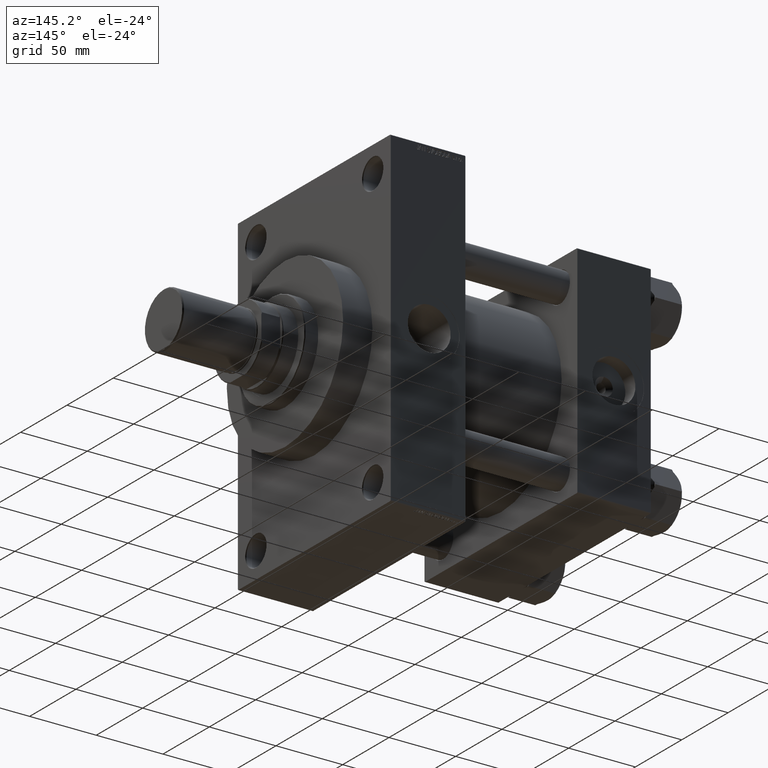
[diagram: clean part render]
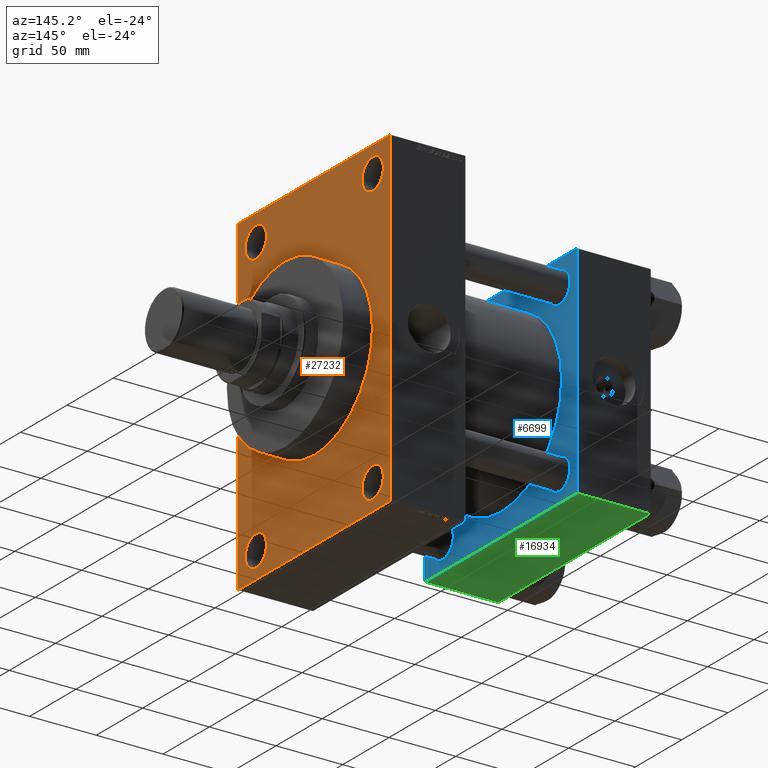
[diagram: same view with three faces highlighted in distinct colors, each labeled with its STEP entity id]
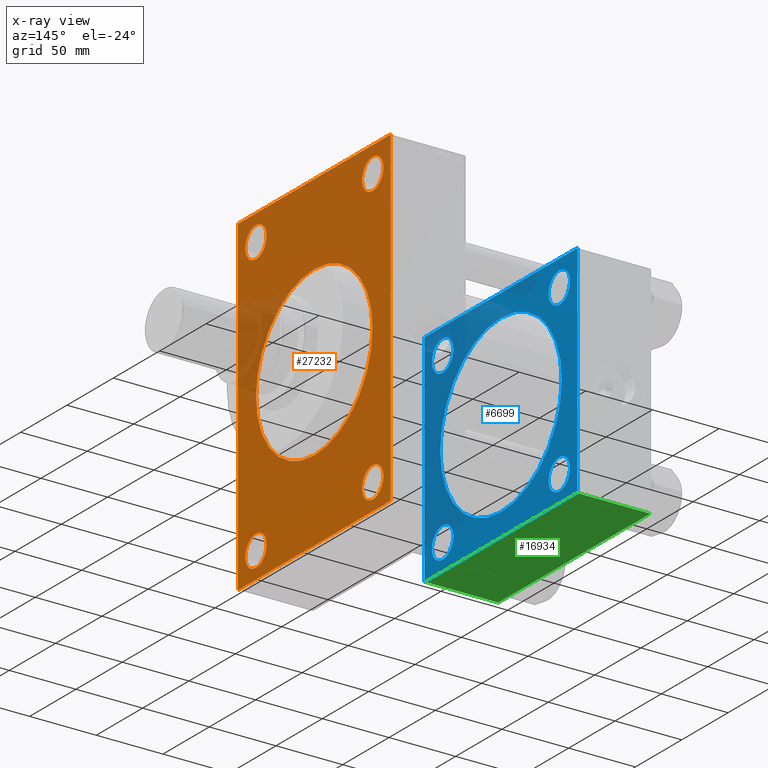
[diagram: x-ray of the same camera — body ghosted, the three highlighted faces saturated]
A machine part, auxiliary view with three faces highlighted in distinct colors.
The next image is the same camera in x-ray (body ghosted, the three faces saturated) — at least one of them is partly hidden behind the body in this view.
Their STEP definitions:

[orange] entity #27232 — the highlighted planar face has unit normal (-1, 0, 0).
#183 = CARTESIAN_POINT ( 'NONE',  ( 195.0000000000000000, 82.00000000000004263, 123.5000000000000142 ) ) ;
#771 = CARTESIAN_POINT ( 'NONE',  ( 195.0000000000000000, 82.49999999999998579, 123.0000000000000142 ) ) ;
#1801 = CARTESIAN_POINT ( 'NONE',  ( 195.0000000000000000, 63.00000000000000000, 92.49999999999992895 ) ) ;
#2216 = CIRCLE ( 'NONE', #36916, 11.50000000000006573 ) ;
#2468 = VERTEX_POINT ( 'NONE', #1801 ) ;
#3031 = CARTESIAN_POINT ( 'NONE',  ( 195.0000000000000000, 0.000000000000000000, 0.000000000000000000 ) ) ;
#3169 = DIRECTION ( 'NONE',  ( -1.000000000000000000, 0.000000000000000000, -0.000000000000000000 ) ) ;
#3202 = DIRECTION ( 'NONE',  ( -1.000000000000000000, 0.000000000000000000, -0.000000000000000000 ) ) ;
#3322 = DIRECTION ( 'NONE',  ( -1.000000000000000000, 0.000000000000000000, -0.000000000000000000 ) ) ;
#3455 = DIRECTION ( 'NONE',  ( 0.000000000000000000, -0.7071067811865081598, 0.7071067811865868746 ) ) ;
#3461 = CARTESIAN_POINT ( 'NONE',  ( 195.0000000000000000, 63.00000000000000000, 104.0000000000000000 ) ) ;
#3832 = CIRCLE ( 'NONE', #7078, 11.50000000000006573 ) ;
#3900 = LINE ( 'NONE', #39021, #39551 ) ;
#3941 = ORIENTED_EDGE ( 'NONE', *, *, #41685, .T. ) ;
#4130 = LINE ( 'NONE', #19527, #44230 ) ;
#4154 = DIRECTION ( 'NONE',  ( 0.000000000000000000, -1.000000000000000000, -8.410780489584517938E-17 ) ) ;
#4550 = ORIENTED_EDGE ( 'NONE', *, *, #31884, .T. ) ;
#4954 = CIRCLE ( 'NONE', #40443, 11.49999999999989875 ) ;
#5808 = EDGE_CURVE ( 'NONE', #39856, #36446, #3900, .T. ) ;
#5922 = CARTESIAN_POINT ( 'NONE',  ( 195.0000000000000000, 7.684658664649641591E-15, 62.75000000000000000 ) ) ;
#6226 = VECTOR ( 'NONE', #48804, 1000.000000000000000 ) ;
#6499 = CARTESIAN_POINT ( 'NONE',  ( 195.0000000000000000, 82.00000000000005684, -123.5000000000000000 ) ) ;
#6796 = DIRECTION ( 'NONE',  ( -1.000000000000000000, 0.000000000000000000, -0.000000000000000000 ) ) ;
#7078 = AXIS2_PLACEMENT_3D ( 'NONE', #16071, #43368, #38331 ) ;
#7091 = LINE ( 'NONE', #49045, #6226 ) ;
#7195 = ORIENTED_EDGE ( 'NONE', *, *, #14144, .T. ) ;
#7336 = VECTOR ( 'NONE', #4154, 1000.000000000000000 ) ;
#7674 = ORIENTED_EDGE ( 'NONE', *, *, #29486, .F. ) ;
#8782 = EDGE_CURVE ( 'NONE', #47368, #10394, #19550, .T. ) ;
#8845 = CARTESIAN_POINT ( 'NONE',  ( 195.0000000000000000, -82.00000000000009948, 123.4999999999999716 ) ) ;
#8954 = CARTESIAN_POINT ( 'NONE',  ( 195.0000000000000000, 82.00000000000004263, 123.5000000000000142 ) ) ;
#9005 = VERTEX_POINT ( 'NONE', #45758 ) ;
#9108 = EDGE_LOOP ( 'NONE', ( #7195, #28432, #10212, #40200, #7674, #22042, #49400, #24237 ) ) ;
#9723 = DIRECTION ( 'NONE',  ( -0.000000000000000000, 0.000000000000000000, 1.000000000000000000 ) ) ;
#10212 = ORIENTED_EDGE ( 'NONE', *, *, #8782, .F. ) ;
#10394 = VERTEX_POINT ( 'NONE', #34230 ) ;
#10517 = DIRECTION ( 'NONE',  ( 0.000000000000000000, 0.000000000000000000, 1.000000000000000000 ) ) ;
#10546 = EDGE_LOOP ( 'NONE', ( #4550, #49115 ) ) ;
#10993 = CARTESIAN_POINT ( 'NONE',  ( 195.0000000000000000, 63.00000000000000000, -104.0000000000000142 ) ) ;
#11004 = DIRECTION ( 'NONE',  ( -1.000000000000000000, 0.000000000000000000, -0.000000000000000000 ) ) ;
#11018 = DIRECTION ( 'NONE',  ( 0.000000000000000000, 0.000000000000000000, 1.000000000000000000 ) ) ;
#11026 = DIRECTION ( 'NONE',  ( -1.000000000000000000, 0.000000000000000000, -0.000000000000000000 ) ) ;
#11987 = DIRECTION ( 'NONE',  ( -0.000000000000000000, -0.7071067811865769936, -0.7071067811865181518 ) ) ;
#12449 = LINE ( 'NONE', #20015, #31870 ) ;
#13109 = VECTOR ( 'NONE', #46781, 1000.000000000000000 ) ;
#13230 = ORIENTED_EDGE ( 'NONE', *, *, #27774, .T. ) ;
#13502 = CARTESIAN_POINT ( 'NONE',  ( 195.0000000000000000, 63.00000000000000000, 104.0000000000000000 ) ) ;
#13571 = VECTOR ( 'NONE', #11987, 1000.000000000000000 ) ;
#14144 = EDGE_CURVE ( 'NONE', #28924, #33843, #39214, .T. ) ;
#14252 = FACE_BOUND ( 'NONE', #19114, .T. ) ;
#15039 = DIRECTION ( 'NONE',  ( 0.000000000000000000, 0.000000000000000000, 1.000000000000000000 ) ) ;
#16071 = CARTESIAN_POINT ( 'NONE',  ( 195.0000000000000000, -63.00000000000000000, 103.9999999999999858 ) ) ;
#16346 = CARTESIAN_POINT ( 'NONE',  ( 195.0000000000000000, 63.00000000000000000, 115.5000000000000568 ) ) ;
#16744 = CARTESIAN_POINT ( 'NONE',  ( 195.0000000000000000, -63.00000000000000000, -115.4999999999999147 ) ) ;
#16919 = EDGE_CURVE ( 'NONE', #20526, #36694, #47869, .T. ) ;
#17172 = EDGE_LOOP ( 'NONE', ( #45080, #24049 ) ) ;
#17399 = CARTESIAN_POINT ( 'NONE',  ( 195.0000000000000000, 63.00000000000000000, -104.0000000000000142 ) ) ;
#17573 = CARTESIAN_POINT ( 'NONE',  ( 195.0000000000000000, -63.00000000000000000, -104.0000000000000142 ) ) ;
#18277 = DIRECTION ( 'NONE',  ( -1.000000000000000000, 0.000000000000000000, -0.000000000000000000 ) ) ;
#18806 = AXIS2_PLACEMENT_3D ( 'NONE', #13502, #40043, #32963 ) ;
#18833 = CARTESIAN_POINT ( 'NONE',  ( 195.0000000000000000, -82.50000000000002842, -123.0000000000000284 ) ) ;
#19114 = EDGE_LOOP ( 'NONE', ( #20810, #37174 ) ) ;
#19527 = CARTESIAN_POINT ( 'NONE',  ( 195.0000000000000000, 82.50000000000000000, -123.0000000000000995 ) ) ;
#19550 = LINE ( 'NONE', #35471, #7336 ) ;
#19697 = VECTOR ( 'NONE', #3455, 1000.000000000000000 ) ;
#19811 = AXIS2_PLACEMENT_3D ( 'NONE', #41293, #18277, #9723 ) ;
#20015 = CARTESIAN_POINT ( 'NONE',  ( 195.0000000000000000, -82.00000000000002842, -123.5000000000000142 ) ) ;
#20021 = DIRECTION ( 'NONE',  ( -0.000000000000000000, 0.7071067811865769936, 0.7071067811865181518 ) ) ;
#20526 = VERTEX_POINT ( 'NONE', #48636 ) ;
#20810 = ORIENTED_EDGE ( 'NONE', *, *, #31025, .T. ) ;
#21079 = PLANE ( 'NONE',  #19811 ) ;
#21136 = EDGE_CURVE ( 'NONE', #28604, #39856, #22896, .T. ) ;
#21575 = VERTEX_POINT ( 'NONE', #26809 ) ;
#22042 = ORIENTED_EDGE ( 'NONE', *, *, #21136, .T. ) ;
#22089 = EDGE_CURVE ( 'NONE', #46043, #37718, #47940, .T. ) ;
#22859 = DIRECTION ( 'NONE',  ( 0.000000000000000000, 0.000000000000000000, 1.000000000000000000 ) ) ;
#22896 = LINE ( 'NONE', #183, #19697 ) ;
#23138 = CARTESIAN_POINT ( 'NONE',  ( 195.0000000000000000, 0.000000000000000000, -62.75000000000000000 ) ) ;
#24049 = ORIENTED_EDGE ( 'NONE', *, *, #30976, .T. ) ;
#24237 = ORIENTED_EDGE ( 'NONE', *, *, #32228, .T. ) ;
#25033 = DIRECTION ( 'NONE',  ( -1.000000000000000000, 0.000000000000000000, -0.000000000000000000 ) ) ;
#25131 = EDGE_CURVE ( 'NONE', #33843, #10394, #12449, .T. ) ;
#25386 = FACE_BOUND ( 'NONE', #39110, .T. ) ;
#25610 = VERTEX_POINT ( 'NONE', #33089 ) ;
#25737 = DIRECTION ( 'NONE',  ( 0.000000000000000000, 0.000000000000000000, 1.000000000000000000 ) ) ;
#26082 = AXIS2_PLACEMENT_3D ( 'NONE', #10993, #49416, #15039 ) ;
#26182 = CARTESIAN_POINT ( 'NONE',  ( 195.0000000000000000, 0.000000000000000000, 0.000000000000000000 ) ) ;
#26809 = CARTESIAN_POINT ( 'NONE',  ( 195.0000000000000000, 82.50000000000000000, -123.0000000000000995 ) ) ;
#27232 = ADVANCED_FACE ( 'NONE', ( #14252, #25386, #29926, #32712, #40301, #29668 ), #21079, .F. ) ;
#27360 = DIRECTION ( 'NONE',  ( 0.000000000000000000, 0.7071067811865573427, -0.7071067811865378028 ) ) ;
#27709 = CIRCLE ( 'NONE', #18806, 11.50000000000006573 ) ;
#27774 = EDGE_CURVE ( 'NONE', #36694, #20526, #40045, .T. ) ;
#27879 = ORIENTED_EDGE ( 'NONE', *, *, #16919, .T. ) ;
#27988 = EDGE_CURVE ( 'NONE', #38286, #42957, #40858, .T. ) ;
#28432 = ORIENTED_EDGE ( 'NONE', *, *, #25131, .T. ) ;
#28604 = VERTEX_POINT ( 'NONE', #771 ) ;
#28924 = VERTEX_POINT ( 'NONE', #41894 ) ;
#29486 = EDGE_CURVE ( 'NONE', #28604, #21575, #7091, .T. ) ;
#29668 = FACE_OUTER_BOUND ( 'NONE', #9108, .T. ) ;
#29926 = FACE_BOUND ( 'NONE', #40701, .T. ) ;
#30976 = EDGE_CURVE ( 'NONE', #39619, #2468, #2216, .T. ) ;
#31025 = EDGE_CURVE ( 'NONE', #9005, #25610, #3832, .T. ) ;
#31197 = LINE ( 'NONE', #46591, #13571 ) ;
#31382 = CARTESIAN_POINT ( 'NONE',  ( 195.0000000000000000, -82.50000000000002842, 123.4999999999999716 ) ) ;
#31870 = VECTOR ( 'NONE', #27360, 1000.000000000000000 ) ;
#31884 = EDGE_CURVE ( 'NONE', #37718, #46043, #33733, .T. ) ;
#32228 = EDGE_CURVE ( 'NONE', #36446, #28924, #31197, .T. ) ;
#32712 = FACE_BOUND ( 'NONE', #17172, .T. ) ;
#32963 = DIRECTION ( 'NONE',  ( 0.000000000000000000, 0.000000000000000000, 1.000000000000000000 ) ) ;
#33089 = CARTESIAN_POINT ( 'NONE',  ( 195.0000000000000000, -63.00000000000000000, 115.5000000000000426 ) ) ;
#33733 = CIRCLE ( 'NONE', #44234, 62.75000000000000000 ) ;
#33843 = VERTEX_POINT ( 'NONE', #18833 ) ;
#34184 = ORIENTED_EDGE ( 'NONE', *, *, #27988, .T. ) ;
#34230 = CARTESIAN_POINT ( 'NONE',  ( 195.0000000000000000, -82.00000000000002842, -123.5000000000000142 ) ) ;
#34279 = DIRECTION ( 'NONE',  ( 0.000000000000000000, 0.000000000000000000, 1.000000000000000000 ) ) ;
#35471 = CARTESIAN_POINT ( 'NONE',  ( 195.0000000000000000, 82.50000000000000000, -123.5000000000000000 ) ) ;
#36030 = EDGE_CURVE ( 'NONE', #47368, #21575, #4130, .T. ) ;
#36446 = VERTEX_POINT ( 'NONE', #8845 ) ;
#36694 = VERTEX_POINT ( 'NONE', #41531 ) ;
#36916 = AXIS2_PLACEMENT_3D ( 'NONE', #3461, #11026, #34279 ) ;
#37174 = ORIENTED_EDGE ( 'NONE', *, *, #41986, .T. ) ;
#37718 = VERTEX_POINT ( 'NONE', #23138 ) ;
#38286 = VERTEX_POINT ( 'NONE', #39642 ) ;
#38331 = DIRECTION ( 'NONE',  ( 0.000000000000000000, 0.000000000000000000, 1.000000000000000000 ) ) ;
#39021 = CARTESIAN_POINT ( 'NONE',  ( 195.0000000000000000, 82.49999999999998579, 123.5000000000000142 ) ) ;
#39110 = EDGE_LOOP ( 'NONE', ( #3941, #34184 ) ) ;
#39214 = LINE ( 'NONE', #31382, #13109 ) ;
#39551 = VECTOR ( 'NONE', #49636, 1000.000000000000000 ) ;
#39619 = VERTEX_POINT ( 'NONE', #16346 ) ;
#39642 = CARTESIAN_POINT ( 'NONE',  ( 195.0000000000000000, -63.00000000000000000, -92.50000000000011369 ) ) ;
#39856 = VERTEX_POINT ( 'NONE', #8954 ) ;
#40043 = DIRECTION ( 'NONE',  ( -1.000000000000000000, 0.000000000000000000, -0.000000000000000000 ) ) ;
#40045 = CIRCLE ( 'NONE', #46499, 11.49999999999989875 ) ;
#40200 = ORIENTED_EDGE ( 'NONE', *, *, #36030, .T. ) ;
#40301 = FACE_BOUND ( 'NONE', #10546, .T. ) ;
#40443 = AXIS2_PLACEMENT_3D ( 'NONE', #41850, #3202, #11018 ) ;
#40701 = EDGE_LOOP ( 'NONE', ( #27879, #13230 ) ) ;
#40858 = CIRCLE ( 'NONE', #43271, 11.49999999999989875 ) ;
#41293 = CARTESIAN_POINT ( 'NONE',  ( 195.0000000000000000, 0.000000000000000000, 0.000000000000000000 ) ) ;
#41531 = CARTESIAN_POINT ( 'NONE',  ( 195.0000000000000000, 63.00000000000000000, -92.50000000000011369 ) ) ;
#41685 = EDGE_CURVE ( 'NONE', #42957, #38286, #4954, .T. ) ;
#41850 = CARTESIAN_POINT ( 'NONE',  ( 195.0000000000000000, -63.00000000000000000, -104.0000000000000142 ) ) ;
#41894 = CARTESIAN_POINT ( 'NONE',  ( 195.0000000000000000, -82.50000000000002842, 123.0000000000000853 ) ) ;
#41986 = EDGE_CURVE ( 'NONE', #25610, #9005, #46888, .T. ) ;
#42957 = VERTEX_POINT ( 'NONE', #16744 ) ;
#43271 = AXIS2_PLACEMENT_3D ( 'NONE', #17573, #3169, #22859 ) ;
#43368 = DIRECTION ( 'NONE',  ( -1.000000000000000000, 0.000000000000000000, -0.000000000000000000 ) ) ;
#44230 = VECTOR ( 'NONE', #20021, 1000.000000000000000 ) ;
#44234 = AXIS2_PLACEMENT_3D ( 'NONE', #3031, #25033, #45226 ) ;
#45080 = ORIENTED_EDGE ( 'NONE', *, *, #46872, .T. ) ;
#45226 = DIRECTION ( 'NONE',  ( 0.000000000000000000, 0.000000000000000000, 1.000000000000000000 ) ) ;
#45749 = DIRECTION ( 'NONE',  ( 0.000000000000000000, 0.000000000000000000, 1.000000000000000000 ) ) ;
#45758 = CARTESIAN_POINT ( 'NONE',  ( 195.0000000000000000, -63.00000000000000000, 92.49999999999991473 ) ) ;
#46043 = VERTEX_POINT ( 'NONE', #5922 ) ;
#46054 = AXIS2_PLACEMENT_3D ( 'NONE', #46259, #3322, #45749 ) ;
#46259 = CARTESIAN_POINT ( 'NONE',  ( 195.0000000000000000, -63.00000000000000000, 103.9999999999999858 ) ) ;
#46345 = AXIS2_PLACEMENT_3D ( 'NONE', #26182, #11004, #10517 ) ;
#46499 = AXIS2_PLACEMENT_3D ( 'NONE', #17399, #6796, #25737 ) ;
#46591 = CARTESIAN_POINT ( 'NONE',  ( 195.0000000000000000, -82.50000000000002842, 123.0000000000000853 ) ) ;
#46781 = DIRECTION ( 'NONE',  ( 0.000000000000000000, 0.000000000000000000, -1.000000000000000000 ) ) ;
#46872 = EDGE_CURVE ( 'NONE', #2468, #39619, #27709, .T. ) ;
#46888 = CIRCLE ( 'NONE', #46054, 11.50000000000006573 ) ;
#47368 = VERTEX_POINT ( 'NONE', #6499 ) ;
#47869 = CIRCLE ( 'NONE', #26082, 11.49999999999989875 ) ;
#47940 = CIRCLE ( 'NONE', #46345, 62.75000000000000000 ) ;
#48636 = CARTESIAN_POINT ( 'NONE',  ( 195.0000000000000000, 63.00000000000000000, -115.4999999999999147 ) ) ;
#48804 = DIRECTION ( 'NONE',  ( 0.000000000000000000, 5.618537574013950123E-17, -1.000000000000000000 ) ) ;
#49045 = CARTESIAN_POINT ( 'NONE',  ( 195.0000000000000000, 82.49999999999998579, 123.5000000000000142 ) ) ;
#49115 = ORIENTED_EDGE ( 'NONE', *, *, #22089, .T. ) ;
#49400 = ORIENTED_EDGE ( 'NONE', *, *, #5808, .T. ) ;
#49416 = DIRECTION ( 'NONE',  ( -1.000000000000000000, 0.000000000000000000, -0.000000000000000000 ) ) ;
#49636 = DIRECTION ( 'NONE',  ( 0.000000000000000000, -1.000000000000000000, -2.523234146875355505E-16 ) ) ;

[blue] entity #6699 — the highlighted planar face has unit normal (-1, 0, 0).
#59 = EDGE_CURVE ( 'NONE', #37729, #41757, #40647, .T. ) ;
#725 = CARTESIAN_POINT ( 'NONE',  ( 55.00000000000000000, -62.94999999999998153, 74.45000000000000284 ) ) ;
#853 = CIRCLE ( 'NONE', #33133, 65.50000000000001421 ) ;
#1202 = DIRECTION ( 'NONE',  ( 0.000000000000000000, 0.000000000000000000, 1.000000000000000000 ) ) ;
#1241 = ORIENTED_EDGE ( 'NONE', *, *, #48736, .T. ) ;
#1440 = DIRECTION ( 'NONE',  ( -1.000000000000000000, 0.000000000000000000, 0.000000000000000000 ) ) ;
#1679 = CARTESIAN_POINT ( 'NONE',  ( 54.99999999999999289, -2.602085213965210642E-15, 0.000000000000000000 ) ) ;
#1971 = DIRECTION ( 'NONE',  ( 0.000000000000000000, 0.7071067811865376918, -0.7071067811865574537 ) ) ;
#2034 = VERTEX_POINT ( 'NONE', #19048 ) ;
#2172 = DIRECTION ( 'NONE',  ( 1.000000000000000000, -0.000000000000000000, -0.000000000000000000 ) ) ;
#2511 = CIRCLE ( 'NONE', #38015, 11.49999999999998224 ) ;
#4804 = CARTESIAN_POINT ( 'NONE',  ( 55.00000000000000000, 62.95000000000000284, 74.44999999999998863 ) ) ;
#4933 = CIRCLE ( 'NONE', #46060, 11.49999999999998224 ) ;
#4980 = DIRECTION ( 'NONE',  ( 0.000000000000000000, 0.000000000000000000, 1.000000000000000000 ) ) ;
#5166 = DIRECTION ( 'NONE',  ( 0.000000000000000000, -0.7071067811865474617, 0.7071067811865474617 ) ) ;
#5591 = DIRECTION ( 'NONE',  ( -1.000000000000000000, 0.000000000000000000, 0.000000000000000000 ) ) ;
#5872 = EDGE_LOOP ( 'NONE', ( #1241, #23527 ) ) ;
#5905 = FACE_BOUND ( 'NONE', #45987, .T. ) ;
#5913 = LINE ( 'NONE', #9700, #37313 ) ;
#5924 = DIRECTION ( 'NONE',  ( 0.000000000000000000, -1.000000000000000000, -8.410780489584519171E-17 ) ) ;
#6033 = CARTESIAN_POINT ( 'NONE',  ( 55.00000000000000000, 82.50000000000002842, -82.00000000000000000 ) ) ;
#6344 = DIRECTION ( 'NONE',  ( -1.000000000000000000, 0.000000000000000000, 0.000000000000000000 ) ) ;
#6594 = CARTESIAN_POINT ( 'NONE',  ( 55.00000000000000000, -62.94999999999998153, -62.95000000000001705 ) ) ;
#6650 = CARTESIAN_POINT ( 'NONE',  ( 55.00000000000000000, 62.95000000000000284, 51.45000000000002416 ) ) ;
#6699 = ADVANCED_FACE ( 'NONE', ( #5905, #21296, #49088, #18004, #29895, #10683 ), #25351, .F. ) ;
#6908 = DIRECTION ( 'NONE',  ( -1.000000000000000000, 0.000000000000000000, 0.000000000000000000 ) ) ;
#7697 = AXIS2_PLACEMENT_3D ( 'NONE', #13377, #28796, #12882 ) ;
#8185 = CARTESIAN_POINT ( 'NONE',  ( 55.00000000000000000, 62.95000000000000284, -74.44999999999998863 ) ) ;
#9700 = CARTESIAN_POINT ( 'NONE',  ( 55.00000000000000000, 82.00000000000005684, 82.50000000000002842 ) ) ;
#10318 = EDGE_CURVE ( 'NONE', #2034, #19117, #853, .T. ) ;
#10637 = VERTEX_POINT ( 'NONE', #6650 ) ;
#10683 = FACE_OUTER_BOUND ( 'NONE', #46690, .T. ) ;
#10882 = VERTEX_POINT ( 'NONE', #13927 ) ;
#10897 = EDGE_CURVE ( 'NONE', #12169, #10882, #4933, .T. ) ;
#10931 = DIRECTION ( 'NONE',  ( 0.000000000000000000, 0.000000000000000000, 1.000000000000000000 ) ) ;
#11077 = VECTOR ( 'NONE', #17135, 1000.000000000000114 ) ;
#11309 = ORIENTED_EDGE ( 'NONE', *, *, #10897, .T. ) ;
#12058 = VERTEX_POINT ( 'NONE', #17151 ) ;
#12169 = VERTEX_POINT ( 'NONE', #21691 ) ;
#12453 = CARTESIAN_POINT ( 'NONE',  ( 55.00000000000000000, 62.95000000000000284, -51.45000000000002416 ) ) ;
#12859 = ORIENTED_EDGE ( 'NONE', *, *, #24337, .T. ) ;
#12882 = DIRECTION ( 'NONE',  ( 0.000000000000000000, 0.000000000000000000, 1.000000000000000000 ) ) ;
#13103 = VERTEX_POINT ( 'NONE', #37949 ) ;
#13205 = DIRECTION ( 'NONE',  ( 0.000000000000000000, 0.000000000000000000, -1.000000000000000000 ) ) ;
#13377 = CARTESIAN_POINT ( 'NONE',  ( 55.00000000000000000, 62.95000000000000284, -62.95000000000000284 ) ) ;
#13927 = CARTESIAN_POINT ( 'NONE',  ( 55.00000000000000000, -62.94999999999998153, -51.45000000000003837 ) ) ;
#14007 = AXIS2_PLACEMENT_3D ( 'NONE', #45786, #6908, #10931 ) ;
#15989 = ORIENTED_EDGE ( 'NONE', *, *, #24398, .T. ) ;
#16066 = DIRECTION ( 'NONE',  ( 0.000000000000000000, 0.000000000000000000, 1.000000000000000000 ) ) ;
#16656 = EDGE_CURVE ( 'NONE', #19199, #18229, #41417, .T. ) ;
#16723 = ORIENTED_EDGE ( 'NONE', *, *, #45042, .T. ) ;
#16731 = CARTESIAN_POINT ( 'NONE',  ( 55.00000000000000000, 82.50000000000002842, -82.00000000000000000 ) ) ;
#17135 = DIRECTION ( 'NONE',  ( -0.000000000000000000, 0.7071067811865474617, 0.7071067811865474617 ) ) ;
#17151 = CARTESIAN_POINT ( 'NONE',  ( 55.00000000000000000, 82.00000000000005684, 82.50000000000002842 ) ) ;
#17266 = VECTOR ( 'NONE', #37930, 1000.000000000000114 ) ;
#17342 = EDGE_CURVE ( 'NONE', #18562, #34769, #18820, .T. ) ;
#17759 = CARTESIAN_POINT ( 'NONE',  ( 55.00000000000000000, 0.000000000000000000, 0.000000000000000000 ) ) ;
#17929 = EDGE_LOOP ( 'NONE', ( #48019, #32340 ) ) ;
#17961 = ORIENTED_EDGE ( 'NONE', *, *, #25497, .T. ) ;
#18004 = FACE_BOUND ( 'NONE', #5872, .T. ) ;
#18229 = VERTEX_POINT ( 'NONE', #21563 ) ;
#18562 = VERTEX_POINT ( 'NONE', #12453 ) ;
#18745 = ORIENTED_EDGE ( 'NONE', *, *, #44471, .T. ) ;
#18820 = CIRCLE ( 'NONE', #14007, 11.49999999999998224 ) ;
#19048 = CARTESIAN_POINT ( 'NONE',  ( 54.99999999999999289, -2.602085213965210642E-15, 65.50000000000001421 ) ) ;
#19117 = VERTEX_POINT ( 'NONE', #20950 ) ;
#19199 = VERTEX_POINT ( 'NONE', #725 ) ;
#19916 = DIRECTION ( 'NONE',  ( 0.000000000000000000, -1.682156097916903588E-16, -1.000000000000000000 ) ) ;
#19998 = EDGE_CURVE ( 'NONE', #19117, #2034, #31859, .T. ) ;
#20950 = CARTESIAN_POINT ( 'NONE',  ( 54.99999999999999289, 5.419351320449953395E-15, -65.50000000000001421 ) ) ;
#21197 = AXIS2_PLACEMENT_3D ( 'NONE', #28694, #44104, #16066 ) ;
#21296 = FACE_BOUND ( 'NONE', #45422, .T. ) ;
#21563 = CARTESIAN_POINT ( 'NONE',  ( 55.00000000000000000, -62.94999999999998153, 51.45000000000003837 ) ) ;
#21691 = CARTESIAN_POINT ( 'NONE',  ( 55.00000000000000000, -62.94999999999998153, -74.45000000000000284 ) ) ;
#22698 = CARTESIAN_POINT ( 'NONE',  ( 54.99999999999999289, -2.602085213965210642E-15, 0.000000000000000000 ) ) ;
#22753 = LINE ( 'NONE', #31106, #17266 ) ;
#22913 = EDGE_CURVE ( 'NONE', #49150, #29068, #22753, .T. ) ;
#23527 = ORIENTED_EDGE ( 'NONE', *, *, #42220, .T. ) ;
#24212 = LINE ( 'NONE', #39636, #31842 ) ;
#24337 = EDGE_CURVE ( 'NONE', #29068, #33680, #24212, .T. ) ;
#24398 = EDGE_CURVE ( 'NONE', #33680, #39978, #33293, .T. ) ;
#24604 = AXIS2_PLACEMENT_3D ( 'NONE', #22698, #26255, #45690 ) ;
#25143 = VECTOR ( 'NONE', #30011, 1000.000000000000000 ) ;
#25333 = DIRECTION ( 'NONE',  ( -1.000000000000000000, 0.000000000000000000, 0.000000000000000000 ) ) ;
#25351 = PLANE ( 'NONE',  #37144 ) ;
#25454 = CARTESIAN_POINT ( 'NONE',  ( 55.00000000000000000, -82.50000000000000000, -81.99999999999998579 ) ) ;
#25497 = EDGE_CURVE ( 'NONE', #34769, #18562, #35126, .T. ) ;
#26094 = DIRECTION ( 'NONE',  ( -1.000000000000000000, 0.000000000000000000, 0.000000000000000000 ) ) ;
#26255 = DIRECTION ( 'NONE',  ( 1.000000000000000000, -0.000000000000000000, -0.000000000000000000 ) ) ;
#26440 = AXIS2_PLACEMENT_3D ( 'NONE', #37696, #25333, #48325 ) ;
#26806 = CIRCLE ( 'NONE', #42946, 11.49999999999998224 ) ;
#27535 = ORIENTED_EDGE ( 'NONE', *, *, #59, .T. ) ;
#27625 = ORIENTED_EDGE ( 'NONE', *, *, #43319, .F. ) ;
#28694 = CARTESIAN_POINT ( 'NONE',  ( 55.00000000000000000, 62.95000000000000284, 62.95000000000000284 ) ) ;
#28796 = DIRECTION ( 'NONE',  ( -1.000000000000000000, 0.000000000000000000, 0.000000000000000000 ) ) ;
#29068 = VERTEX_POINT ( 'NONE', #38113 ) ;
#29581 = ORIENTED_EDGE ( 'NONE', *, *, #22913, .T. ) ;
#29895 = FACE_BOUND ( 'NONE', #17929, .T. ) ;
#30011 = DIRECTION ( 'NONE',  ( 0.000000000000000000, -1.000000000000000000, -1.682156097916903588E-16 ) ) ;
#30249 = VECTOR ( 'NONE', #1971, 999.9999999999998863 ) ;
#30676 = EDGE_CURVE ( 'NONE', #18229, #19199, #44988, .T. ) ;
#30767 = LINE ( 'NONE', #42373, #25143 ) ;
#31106 = CARTESIAN_POINT ( 'NONE',  ( 55.00000000000000000, -82.49999999999997158, 82.00000000000001421 ) ) ;
#31842 = VECTOR ( 'NONE', #19916, 1000.000000000000000 ) ;
#31859 = CIRCLE ( 'NONE', #24604, 65.50000000000001421 ) ;
#32017 = CARTESIAN_POINT ( 'NONE',  ( 55.00000000000000000, -62.94999999999998153, 62.95000000000001705 ) ) ;
#32330 = VECTOR ( 'NONE', #5924, 1000.000000000000000 ) ;
#32340 = ORIENTED_EDGE ( 'NONE', *, *, #19998, .F. ) ;
#32358 = ORIENTED_EDGE ( 'NONE', *, *, #30676, .T. ) ;
#32416 = LINE ( 'NONE', #47822, #35678 ) ;
#32446 = CARTESIAN_POINT ( 'NONE',  ( 55.00000000000000000, -82.00000000000000000, -82.50000000000000000 ) ) ;
#32887 = VERTEX_POINT ( 'NONE', #4804 ) ;
#33126 = DIRECTION ( 'NONE',  ( 0.000000000000000000, 0.000000000000000000, 1.000000000000000000 ) ) ;
#33133 = AXIS2_PLACEMENT_3D ( 'NONE', #1679, #2172, #4980 ) ;
#33293 = LINE ( 'NONE', #37085, #30249 ) ;
#33680 = VERTEX_POINT ( 'NONE', #25454 ) ;
#33901 = ORIENTED_EDGE ( 'NONE', *, *, #16656, .T. ) ;
#34769 = VERTEX_POINT ( 'NONE', #8185 ) ;
#35126 = CIRCLE ( 'NONE', #7697, 11.49999999999998224 ) ;
#35678 = VECTOR ( 'NONE', #13205, 1000.000000000000000 ) ;
#35707 = CIRCLE ( 'NONE', #21197, 11.49999999999998224 ) ;
#36642 = DIRECTION ( 'NONE',  ( -1.000000000000000000, 0.000000000000000000, 0.000000000000000000 ) ) ;
#37085 = CARTESIAN_POINT ( 'NONE',  ( 55.00000000000000000, -82.00000000000000000, -82.50000000000000000 ) ) ;
#37144 = AXIS2_PLACEMENT_3D ( 'NONE', #17759, #26094, #37474 ) ;
#37218 = CARTESIAN_POINT ( 'NONE',  ( 55.00000000000000000, -81.99999999999997158, 82.50000000000001421 ) ) ;
#37313 = VECTOR ( 'NONE', #5166, 1000.000000000000114 ) ;
#37474 = DIRECTION ( 'NONE',  ( 0.000000000000000000, 0.000000000000000000, 1.000000000000000000 ) ) ;
#37696 = CARTESIAN_POINT ( 'NONE',  ( 55.00000000000000000, -62.94999999999998153, 62.95000000000001705 ) ) ;
#37729 = VERTEX_POINT ( 'NONE', #41604 ) ;
#37930 = DIRECTION ( 'NONE',  ( -0.000000000000000000, -0.7071067811865474617, -0.7071067811865474617 ) ) ;
#37949 = CARTESIAN_POINT ( 'NONE',  ( 55.00000000000000000, 82.50000000000002842, 82.00000000000005684 ) ) ;
#38015 = AXIS2_PLACEMENT_3D ( 'NONE', #40692, #36642, #44968 ) ;
#38113 = CARTESIAN_POINT ( 'NONE',  ( 55.00000000000000000, -82.49999999999997158, 82.00000000000001421 ) ) ;
#39636 = CARTESIAN_POINT ( 'NONE',  ( 55.00000000000000000, -82.49999999999997158, 82.50000000000001421 ) ) ;
#39729 = ORIENTED_EDGE ( 'NONE', *, *, #40868, .T. ) ;
#39978 = VERTEX_POINT ( 'NONE', #32446 ) ;
#40203 = CARTESIAN_POINT ( 'NONE',  ( 55.00000000000000000, -62.94999999999998153, -62.95000000000001705 ) ) ;
#40487 = ORIENTED_EDGE ( 'NONE', *, *, #17342, .T. ) ;
#40647 = LINE ( 'NONE', #6033, #11077 ) ;
#40692 = CARTESIAN_POINT ( 'NONE',  ( 55.00000000000000000, 62.95000000000000284, 62.95000000000000284 ) ) ;
#40868 = EDGE_CURVE ( 'NONE', #12058, #49150, #41031, .T. ) ;
#41031 = LINE ( 'NONE', #44328, #32330 ) ;
#41417 = CIRCLE ( 'NONE', #43840, 11.49999999999998224 ) ;
#41488 = ORIENTED_EDGE ( 'NONE', *, *, #48193, .F. ) ;
#41604 = CARTESIAN_POINT ( 'NONE',  ( 55.00000000000000000, 82.00000000000005684, -82.49999999999997158 ) ) ;
#41757 = VERTEX_POINT ( 'NONE', #16731 ) ;
#42220 = EDGE_CURVE ( 'NONE', #32887, #10637, #2511, .T. ) ;
#42373 = CARTESIAN_POINT ( 'NONE',  ( 55.00000000000000000, 82.50000000000002842, -82.49999999999997158 ) ) ;
#42946 = AXIS2_PLACEMENT_3D ( 'NONE', #40203, #5591, #33126 ) ;
#43319 = EDGE_CURVE ( 'NONE', #37729, #39978, #30767, .T. ) ;
#43840 = AXIS2_PLACEMENT_3D ( 'NONE', #32017, #1440, #1202 ) ;
#44104 = DIRECTION ( 'NONE',  ( -1.000000000000000000, 0.000000000000000000, 0.000000000000000000 ) ) ;
#44328 = CARTESIAN_POINT ( 'NONE',  ( 55.00000000000000000, 82.50000000000002842, 82.50000000000002842 ) ) ;
#44471 = EDGE_CURVE ( 'NONE', #10882, #12169, #26806, .T. ) ;
#44726 = EDGE_LOOP ( 'NONE', ( #32358, #33901 ) ) ;
#44968 = DIRECTION ( 'NONE',  ( 0.000000000000000000, 0.000000000000000000, 1.000000000000000000 ) ) ;
#44988 = CIRCLE ( 'NONE', #26440, 11.49999999999998224 ) ;
#45042 = EDGE_CURVE ( 'NONE', #13103, #12058, #5913, .T. ) ;
#45422 = EDGE_LOOP ( 'NONE', ( #17961, #40487 ) ) ;
#45690 = DIRECTION ( 'NONE',  ( 0.000000000000000000, 0.000000000000000000, 1.000000000000000000 ) ) ;
#45786 = CARTESIAN_POINT ( 'NONE',  ( 55.00000000000000000, 62.95000000000000284, -62.95000000000000284 ) ) ;
#45987 = EDGE_LOOP ( 'NONE', ( #11309, #18745 ) ) ;
#46060 = AXIS2_PLACEMENT_3D ( 'NONE', #6594, #6344, #49286 ) ;
#46690 = EDGE_LOOP ( 'NONE', ( #27625, #27535, #41488, #16723, #39729, #29581, #12859, #15989 ) ) ;
#47822 = CARTESIAN_POINT ( 'NONE',  ( 55.00000000000000000, 82.50000000000002842, 82.50000000000002842 ) ) ;
#48019 = ORIENTED_EDGE ( 'NONE', *, *, #10318, .F. ) ;
#48193 = EDGE_CURVE ( 'NONE', #13103, #41757, #32416, .T. ) ;
#48325 = DIRECTION ( 'NONE',  ( 0.000000000000000000, 0.000000000000000000, 1.000000000000000000 ) ) ;
#48736 = EDGE_CURVE ( 'NONE', #10637, #32887, #35707, .T. ) ;
#49088 = FACE_BOUND ( 'NONE', #44726, .T. ) ;
#49150 = VERTEX_POINT ( 'NONE', #37218 ) ;
#49286 = DIRECTION ( 'NONE',  ( 0.000000000000000000, 0.000000000000000000, 1.000000000000000000 ) ) ;

[green] entity #16934 — the highlighted planar face has unit normal (0, 0, -1).
#669 = VECTOR ( 'NONE', #2234, 1000.000000000000000 ) ;
#2234 = DIRECTION ( 'NONE',  ( -1.000000000000000000, 0.000000000000000000, 0.000000000000000000 ) ) ;
#2429 = LINE ( 'NONE', #22592, #7428 ) ;
#4311 = AXIS2_PLACEMENT_3D ( 'NONE', #26920, #26412, #34243 ) ;
#4713 = ORIENTED_EDGE ( 'NONE', *, *, #44145, .F. ) ;
#7428 = VECTOR ( 'NONE', #49149, 1000.000000000000000 ) ;
#8719 = ORIENTED_EDGE ( 'NONE', *, *, #14778, .T. ) ;
#14749 = ORIENTED_EDGE ( 'NONE', *, *, #32125, .T. ) ;
#14778 = EDGE_CURVE ( 'NONE', #42990, #37729, #24425, .T. ) ;
#16934 = ADVANCED_FACE ( 'NONE', ( #33753 ), #26668, .T. ) ;
#22592 = CARTESIAN_POINT ( 'NONE',  ( 0.000000000000000000, 82.50000000000002842, -82.49999999999997158 ) ) ;
#24425 = LINE ( 'NONE', #36042, #45378 ) ;
#24832 = CARTESIAN_POINT ( 'NONE',  ( 0.000000000000000000, 82.00000000000005684, -82.49999999999997158 ) ) ;
#25132 = CARTESIAN_POINT ( 'NONE',  ( 0.000000000000000000, -82.00000000000000000, -82.50000000000000000 ) ) ;
#25143 = VECTOR ( 'NONE', #30011, 1000.000000000000000 ) ;
#26412 = DIRECTION ( 'NONE',  ( 0.000000000000000000, 1.682156097916903588E-16, -1.000000000000000000 ) ) ;
#26668 = PLANE ( 'NONE',  #4311 ) ;
#26920 = CARTESIAN_POINT ( 'NONE',  ( 55.00000000000000000, 82.50000000000002842, -82.49999999999997158 ) ) ;
#27639 = ORIENTED_EDGE ( 'NONE', *, *, #43319, .T. ) ;
#29766 = LINE ( 'NONE', #33314, #669 ) ;
#30011 = DIRECTION ( 'NONE',  ( 0.000000000000000000, -1.000000000000000000, -1.682156097916903588E-16 ) ) ;
#30767 = LINE ( 'NONE', #42373, #25143 ) ;
#32125 = EDGE_CURVE ( 'NONE', #39978, #46775, #29766, .T. ) ;
#32446 = CARTESIAN_POINT ( 'NONE',  ( 55.00000000000000000, -82.00000000000000000, -82.50000000000000000 ) ) ;
#33314 = CARTESIAN_POINT ( 'NONE',  ( 0.000000000000000000, -82.00000000000000000, -82.50000000000000000 ) ) ;
#33753 = FACE_OUTER_BOUND ( 'NONE', #38335, .T. ) ;
#34243 = DIRECTION ( 'NONE',  ( 0.000000000000000000, 1.000000000000000000, 1.682156097916903588E-16 ) ) ;
#36042 = CARTESIAN_POINT ( 'NONE',  ( 55.00000000000000000, 82.00000000000005684, -82.49999999999997158 ) ) ;
#37729 = VERTEX_POINT ( 'NONE', #41604 ) ;
#38335 = EDGE_LOOP ( 'NONE', ( #4713, #8719, #27639, #14749 ) ) ;
#39846 = DIRECTION ( 'NONE',  ( 1.000000000000000000, 0.000000000000000000, 0.000000000000000000 ) ) ;
#39978 = VERTEX_POINT ( 'NONE', #32446 ) ;
#41604 = CARTESIAN_POINT ( 'NONE',  ( 55.00000000000000000, 82.00000000000005684, -82.49999999999997158 ) ) ;
#42373 = CARTESIAN_POINT ( 'NONE',  ( 55.00000000000000000, 82.50000000000002842, -82.49999999999997158 ) ) ;
#42990 = VERTEX_POINT ( 'NONE', #24832 ) ;
#43319 = EDGE_CURVE ( 'NONE', #37729, #39978, #30767, .T. ) ;
#44145 = EDGE_CURVE ( 'NONE', #42990, #46775, #2429, .T. ) ;
#45378 = VECTOR ( 'NONE', #39846, 1000.000000000000000 ) ;
#46775 = VERTEX_POINT ( 'NONE', #25132 ) ;
#49149 = DIRECTION ( 'NONE',  ( 0.000000000000000000, -1.000000000000000000, -1.682156097916903588E-16 ) ) ;